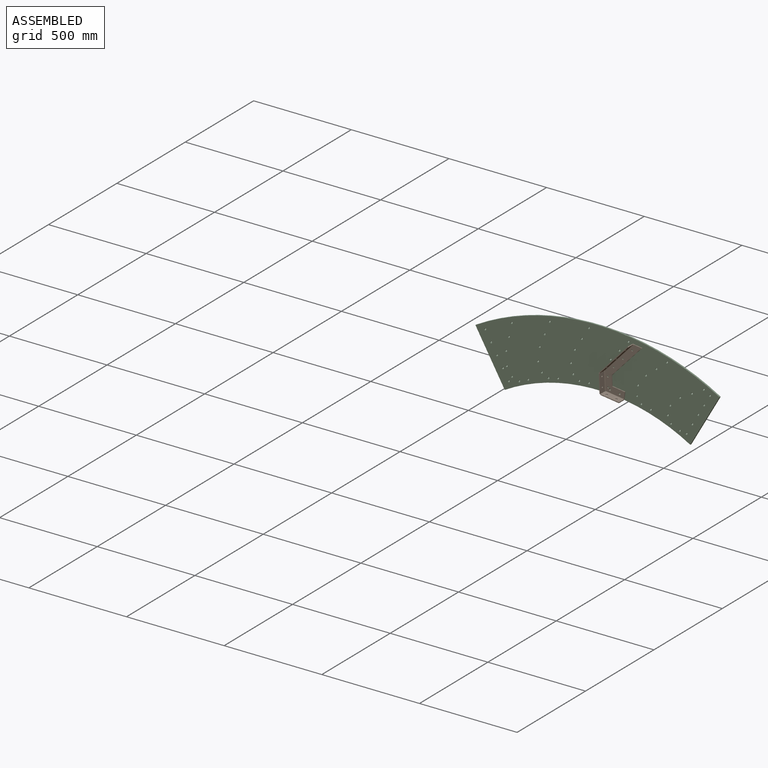
[diagram: assembled view]
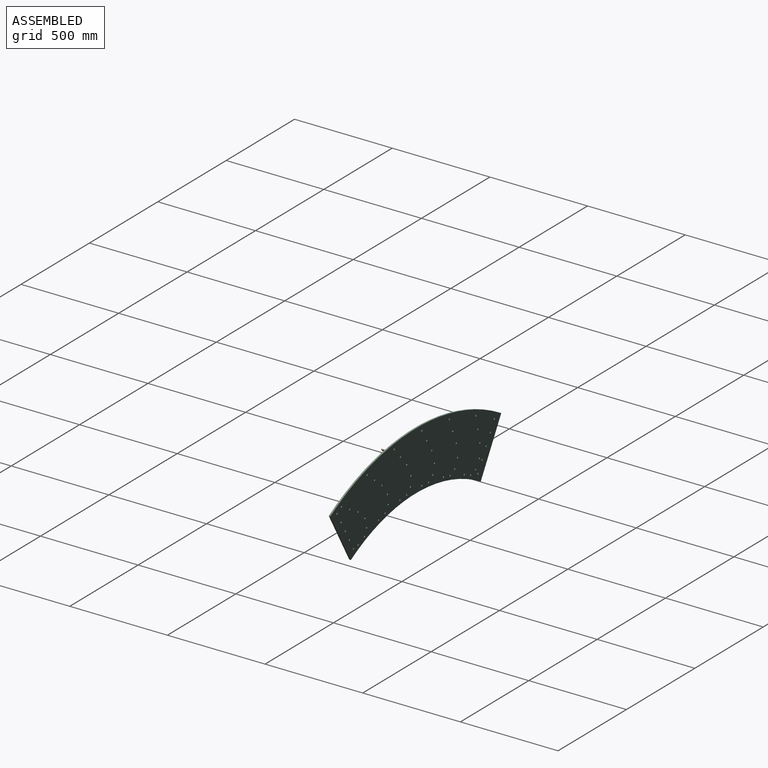
[diagram: assembled view, second angle]
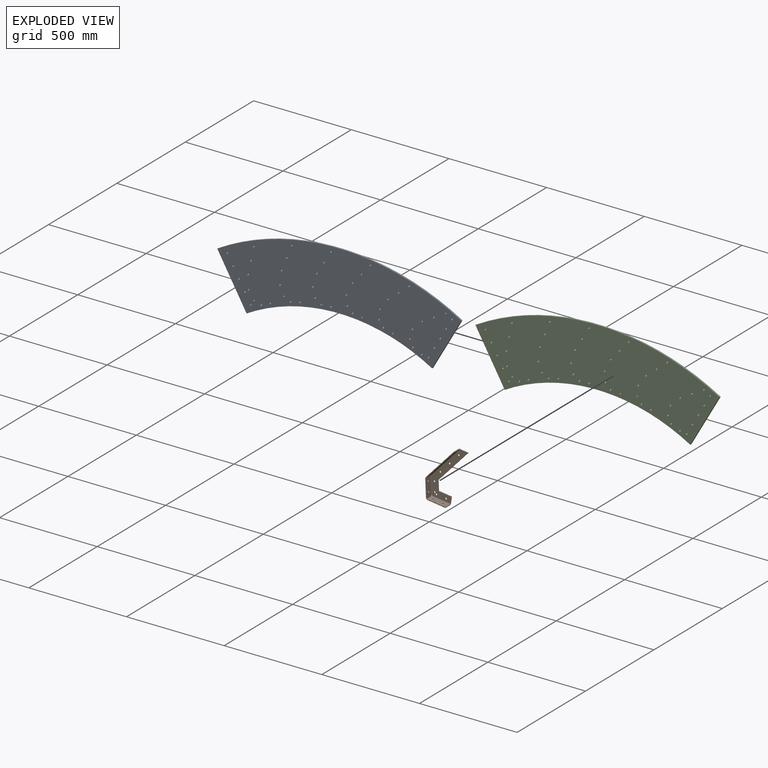
[diagram: exploded view]
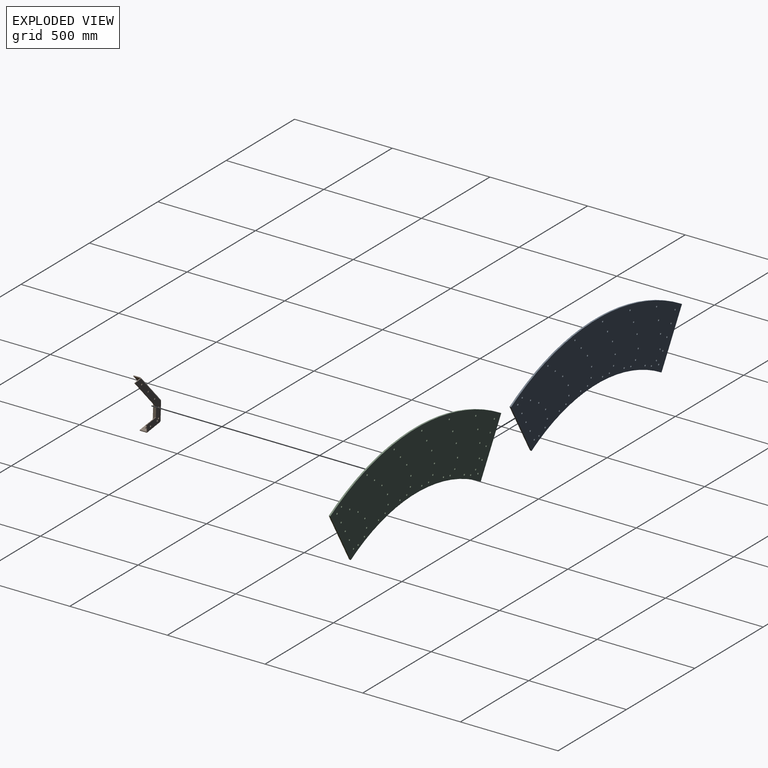
[diagram: exploded view, second angle]
ASSEMBLY  parts=3 mates=2
PART A: 58 faces, bbox 1250x8.4x427.3 mm
  f0: cylinder r=4.5mm len=9.15mm, axis (0.02,-1,-0.01), area 226.2mm2, adj f49,f50
  f1: cylinder r=4.5mm len=9.15mm, axis (0.02,-1,-0.01), area 226.2mm2, adj f49,f50
  f2: cylinder r=4.5mm len=9.15mm, axis (0.02,-1,-0.01), area 226.2mm2, adj f49,f50
  f3: cylinder r=4.5mm len=9.15mm, axis (0.02,-1,-0.01), area 226.2mm2, adj f49,f50
  f4: cylinder r=4.5mm len=9.15mm, axis (0.02,-1,-0.01), area 226.2mm2, adj f49,f50
  f5: cylinder r=4.5mm len=9.15mm, axis (0.02,-1,-0.01), area 226.2mm2, adj f49,f50
  f6: cylinder r=4.5mm len=9.15mm, axis (0.02,-1,-0.01), area 226.2mm2, adj f49,f50
  f7: cylinder r=4.5mm len=9.13mm, axis (0.02,-1,-0.01), area 226.2mm2, adj f49,f50
  f8: cylinder r=4.5mm len=9.13mm, axis (0.02,-1,-0.01), area 226.2mm2, adj f49,f50
  f9: cylinder r=4.5mm len=9.13mm, axis (0.02,-1,-0.01), area 226.2mm2, adj f49,f50
  f10: cylinder r=4.5mm len=9.13mm, axis (0.02,-1,-0.01), area 226.2mm2, adj f49,f50
  f11: cylinder r=4.5mm len=9.13mm, axis (0.02,-1,-0.01), area 226.2mm2, adj f49,f50
  f12: cylinder r=4.5mm len=9.13mm, axis (0.02,-1,-0.01), area 226.2mm2, adj f49,f50
  f13: cylinder r=4.5mm len=9.13mm, axis (0.02,-1,-0.01), area 226.2mm2, adj f49,f50
  f14: cylinder r=4.5mm len=9.1mm, axis (0.01,-1,0), area 226.2mm2, adj f49,f50
  f15: cylinder r=4.5mm len=9.1mm, axis (0.01,-1,0), area 226.2mm2, adj f49,f50
  f16: cylinder r=4.5mm len=9.1mm, axis (0.01,-1,0), area 226.2mm2, adj f49,f50
  f17: cylinder r=4.5mm len=9.1mm, axis (0.01,-1,0), area 226.2mm2, adj f49,f50
  f18: cylinder r=4.5mm len=9.1mm, axis (0.01,-1,0), area 226.2mm2, adj f49,f50
  f19: cylinder r=4.5mm len=9.1mm, axis (0.01,-1,0), area 226.2mm2, adj f49,f50
  f20: cylinder r=4.5mm len=9.1mm, axis (0.01,-1,0), area 226.2mm2, adj f49,f50
  f21: cylinder r=4.5mm len=9.07mm, axis (0.01,-1,0), area 226.2mm2, adj f49,f50
  f22: cylinder r=4.5mm len=9.07mm, axis (0.01,-1,0), area 226.2mm2, adj f49,f50
  f23: cylinder r=4.5mm len=9.07mm, axis (0.01,-1,0), area 226.2mm2, adj f49,f50
  f24: cylinder r=4.5mm len=9.07mm, axis (0.01,-1,0), area 226.2mm2, adj f49,f50
  f25: cylinder r=4.5mm len=9.07mm, axis (0.01,-1,0), area 226.2mm2, adj f49,f50
  f26: cylinder r=4.5mm len=9.07mm, axis (0.01,-1,0), area 226.2mm2, adj f49,f50
  f27: cylinder r=4.5mm len=9.07mm, axis (0.01,-1,0), area 226.2mm2, adj f49,f50
  f28: cylinder r=4.5mm len=9.03mm, axis (0,-1,0), area 226.2mm2, adj f49,f50
  f29: cylinder r=4.5mm len=9.03mm, axis (0,-1,0), area 226.2mm2, adj f49,f50
  f30: cylinder r=4.5mm len=9.03mm, axis (0,-1,0), area 226.2mm2, adj f49,f50
  f31: cylinder r=4.5mm len=9.03mm, axis (0,-1,0), area 226.2mm2, adj f49,f50
  f32: cylinder r=4.5mm len=9.03mm, axis (0,-1,0), area 226.2mm2, adj f49,f50
  f33: cylinder r=4.5mm len=9.03mm, axis (0,-1,0), area 226.2mm2, adj f49,f50
  f34: cylinder r=4.5mm len=9.03mm, axis (0,-1,0), area 226.2mm2, adj f49,f50
  f35: plane 259.81x150mm, normal (-0.87,0,-0.5), area 2400mm2, adj f36,f47,f49,f50
  f36: cylinder r=950mm len=950mm, axis (0,1,0), area 7958.7mm2, adj f35,f37,f49,f50
  f37: plane 259.81x150mm, normal (0.87,0,-0.5), area 2400mm2, adj f36,f47,f49,f50
  f38: cylinder r=4.5mm len=9mm, axis (0,1,0), area 226.2mm2, adj f49,f50
  f39: cylinder r=4.5mm len=9mm, axis (0,1,0), area 226.2mm2, adj f49,f50
  f40: cylinder r=4.5mm len=9mm, axis (0,1,0), area 226.2mm2, adj f49,f50
  f41: cylinder r=4.5mm len=9mm, axis (0,1,0), area 226.2mm2, adj f49,f50
  f42: cylinder r=4.5mm len=9mm, axis (0,1,0), area 226.2mm2, adj f49,f50
  f43: cylinder r=4.5mm len=9mm, axis (0,1,0), area 226.2mm2, adj f49,f50
  f44: cylinder r=4.5mm len=9mm, axis (0,1,0), area 226.2mm2, adj f49,f50
  f45: cylinder r=4.5mm len=9mm, axis (0,1,0), area 226.2mm2, adj f49,f50
  f46: cylinder r=4.5mm len=9mm, axis (0,1,0), area 226.2mm2, adj f49,f50
  f47: cylinder r=1250mm len=1250mm, axis (0,1,0), area 10472mm2, adj f35,f37,f49,f50
  f48: cylinder r=4.5mm len=9mm, axis (0,1,0), area 226.2mm2, adj f49,f50
  f49: plane 1250x427.28mm, normal (0,-1,0), area 342266.9mm2, adj f0,f1,f2,f3,f4,f5,f6,f7
  f50: plane 1250x427.28mm, normal (0,1,0), area 342266.9mm2, adj f0,f1,f2,f3,f4,f5,f6,f7
  f51: cylinder r=4.5mm len=9mm, axis (0,-1,0), area 226.2mm2, adj f49,f50
  f52: cylinder r=4.5mm len=9mm, axis (0,-1,0), area 226.2mm2, adj f49,f50
  f53: cylinder r=4.5mm len=9mm, axis (0,-1,0), area 226.2mm2, adj f49,f50
  f54: cylinder r=4.5mm len=9mm, axis (0,-1,0), area 226.2mm2, adj f49,f50
  f55: cylinder r=4.5mm len=9mm, axis (0,-1,0), area 226.2mm2, adj f49,f50
  f56: cylinder r=4.5mm len=9mm, axis (0,-1,0), area 226.2mm2, adj f49,f50
  f57: cylinder r=4.5mm len=9mm, axis (0,-1,0), area 226.2mm2, adj f49,f50
PART B: 52 faces, bbox 172.1x40x278.6 mm
  f0: plane 49.11x8.66mm, normal (0.98,0,0.17), area 199.5mm2, adj f1,f11,f12,f13
  f1: plane 66.44x4mm, normal (0,0,1), area 265.7mm2, adj f0,f2,f12,f13
  f2: plane 33.7x4mm, normal (1,0,0), area 134.8mm2, adj f1,f12,f13,f48
  f3: plane 41.14x4mm, normal (0,0,1), area 164.6mm2, adj f11,f12,f13,f24
  f4: cylinder r=4.5mm len=9mm, axis (0,-1,0), area 113.1mm2, adj f12,f13
  f5: cylinder r=4.5mm len=9mm, axis (0,-1,0), area 113.1mm2, adj f12,f13
  f6: cylinder r=4.5mm len=9mm, axis (0,-1,0), area 113.1mm2, adj f12,f13
  f7: cylinder r=4.5mm len=9mm, axis (0,-1,0), area 113.1mm2, adj f12,f13
  f8: cylinder r=4.5mm len=9mm, axis (0,-1,0), area 113.1mm2, adj f12,f13
  f9: cylinder r=4.5mm len=9mm, axis (0,-1,0), area 113.1mm2, adj f12,f13
  f10: cylinder r=4.5mm len=9mm, axis (0,-1,0), area 113.1mm2, adj f12,f13
  f11: plane 185.89x130.16mm, normal (0.82,0,-0.57), area 907.7mm2, adj f0,f3,f12,f13
  f12: plane 268.7x165.77mm, normal (0,1,0), area 12147.4mm2, adj f0,f1,f2,f3,f4,f5,f6,f7
  f13: plane 268.7x165.77mm, normal (0,-1,0), area 12147.4mm2, adj f0,f1,f2,f3,f4,f5,f6,f7
  f14: plane 179.74x127.53mm, normal (0,-1,0), area 866.5mm2, adj f15,f20,f21,f22
  f15: plane 33.7x3.28mm, normal (0.57,0,0.82), area 134.8mm2, adj f14,f21,f22,f24
  f16: plane 3.82x3.07mm, normal (0,1,0), area 3.8mm2, adj f20,f21,f22,f23
  f17: cylinder r=4.5mm len=9.67mm, axis (-0.82,0,0.57), area 113.1mm2, adj f21,f22
  f18: cylinder r=4.5mm len=9.67mm, axis (-0.82,0,0.57), area 113.1mm2, adj f21,f22
  f19: cylinder r=4.5mm len=9.67mm, axis (-0.82,0,0.57), area 113.1mm2, adj f21,f22
  f20: plane 33.7x3.28mm, normal (-0.57,0,-0.82), area 134.8mm2, adj f14,f16,f21,f22
  f21: plane 177.45x124.25mm, normal (-0.82,0,0.57), area 7109.3mm2, adj f14,f15,f16,f17,f18,f19,f20,f25
  f22: plane 177.45x124.25mm, normal (0.82,0,-0.57), area 7109.3mm2, adj f14,f15,f16,f17,f18,f19,f20,f26
  f23: plane 6.3x5.16mm, normal (-0.57,0,-0.82), area 27mm2, adj f16,f25,f26,f37
  f24: bspline ~6.3x6.14mm, area 28.9mm2, adj f3,f15,f25,f26
  f25: cylinder r=6.3mm len=181.61mm, axis (-0.57,0,-0.82), area 2136.7mm2, adj f12,f21,f23,f24
  f26: cylinder r=2.3mm len=179.31mm, axis (-0.57,0,-0.82), area 780.1mm2, adj f13,f22,f23,f24
  f27: plane 4.1x1.62mm, normal (0,1,0), area 3.8mm2, adj f29,f34,f35,f37
  f28: plane 94.21x20.43mm, normal (0,-1,0), area 379.8mm2, adj f29,f33,f34,f35
  f29: plane 33.7x3.94mm, normal (-0.17,0,0.98), area 134.8mm2, adj f27,f28,f34,f35
  f30: plane 4.27x2.58mm, normal (0,1,0), area 7.7mm2, adj f33,f34,f35,f36
  f31: cylinder r=4.5mm len=9.56mm, axis (-0.98,0,-0.17), area 113.1mm2, adj f34,f35
  f32: cylinder r=4.5mm len=9.56mm, axis (-0.98,0,-0.17), area 113.1mm2, adj f34,f35
  f33: plane 33.7x3.94mm, normal (0.17,0,-0.98), area 134.8mm2, adj f28,f30,f34,f35
  f34: plane 93.52x33.7mm, normal (-0.98,0,-0.17), area 3072.8mm2, adj f27,f28,f29,f30,f31,f32,f33,f38
  f35: plane 93.52x33.7mm, normal (0.98,0,0.17), area 3072.8mm2, adj f27,f28,f29,f30,f31,f32,f33,f39
  f36: plane 6.3x6.2mm, normal (0.17,0,-0.98), area 27mm2, adj f30,f38,f39,f49
  f37: plane 6.3x6.2mm, normal (-0.17,0,0.98), area 27mm2, adj f23,f27,f38,f39
  f38: cylinder r=6.3mm len=91.8mm, axis (0.17,0,-0.98), area 911.5mm2, adj f12,f34,f36,f37
  f39: cylinder r=2.3mm len=91.1mm, axis (0.17,0,-0.98), area 332.8mm2, adj f13,f35,f36,f37
  f40: plane 4x1.91mm, normal (0,1,0), area 7.7mm2, adj f42,f46,f47,f49
  f41: plane 96.63x4mm, normal (0,-1,0), area 386.5mm2, adj f42,f45,f46,f47
  f42: plane 33.7x4mm, normal (-1,0,0), area 134.8mm2, adj f40,f41,f46,f47
  f43: cylinder r=4.5mm len=9mm, axis (0,0,-1), area 113.1mm2, adj f46,f47
  f44: cylinder r=4.5mm len=9mm, axis (0,0,-1), area 113.1mm2, adj f46,f47
  f45: plane 33.7x4mm, normal (1,0,0), area 134.8mm2, adj f41,f46,f47,f48
  f46: plane 96.63x33.7mm, normal (0,0,-1), area 3129.1mm2, adj f40,f41,f42,f43,f44,f45,f50
  f47: plane 96.63x33.7mm, normal (0,0,1), area 3129.1mm2, adj f40,f41,f42,f43,f44,f45,f51
  f48: plane 6.3x6.3mm, normal (1,0,0), area 27mm2, adj f2,f45,f50,f51
  f49: plane 6.3x6.3mm, normal (-1,0,0), area 27mm2, adj f36,f40,f50,f51
  f50: cylinder r=6.3mm len=94.71mm, axis (1,0,0), area 937.3mm2, adj f12,f46,f48,f49
  f51: cylinder r=2.3mm len=94.71mm, axis (1,0,0), area 342.2mm2, adj f13,f47,f48,f49
PART C: same geometry as A
PLACE A t=(-492.15,226.96,-275.71)mm
PLACE B rot(axis=(0,1,0),7.7deg) t=(-453.8,218.96,677.64)mm
PLACE C t=(-492.15,226.96,-275.71)mm fixed
MATE cylindrical B.f9 <-> C.f49  axis (0,-1,0) through (-376.8,214.96,687.4)mm
MATE planar C.f49 <-> B.f8  axis (0,-1,0) through (-492.12,218.96,781.63)mm
